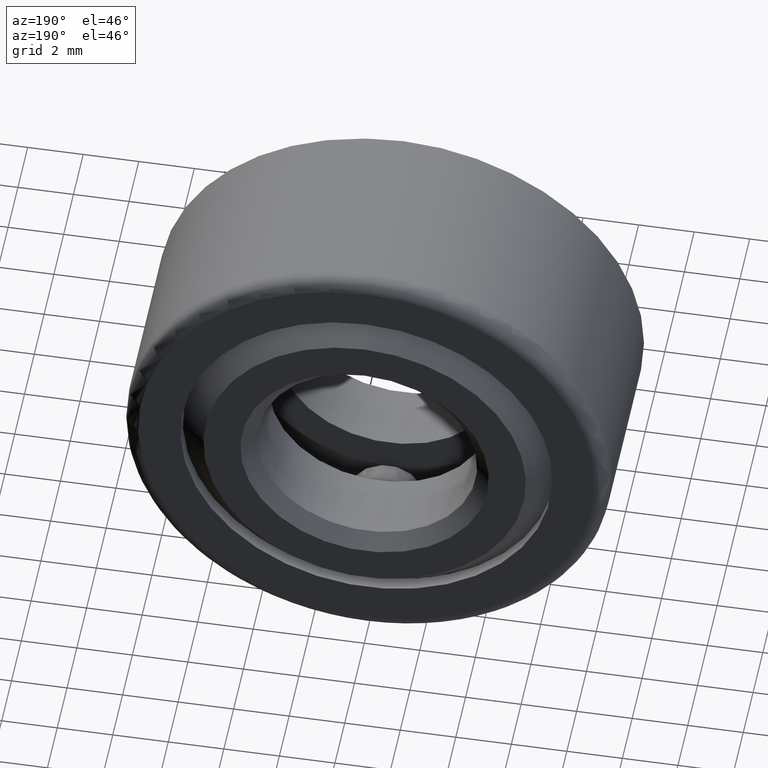
[diagram: clean part render]
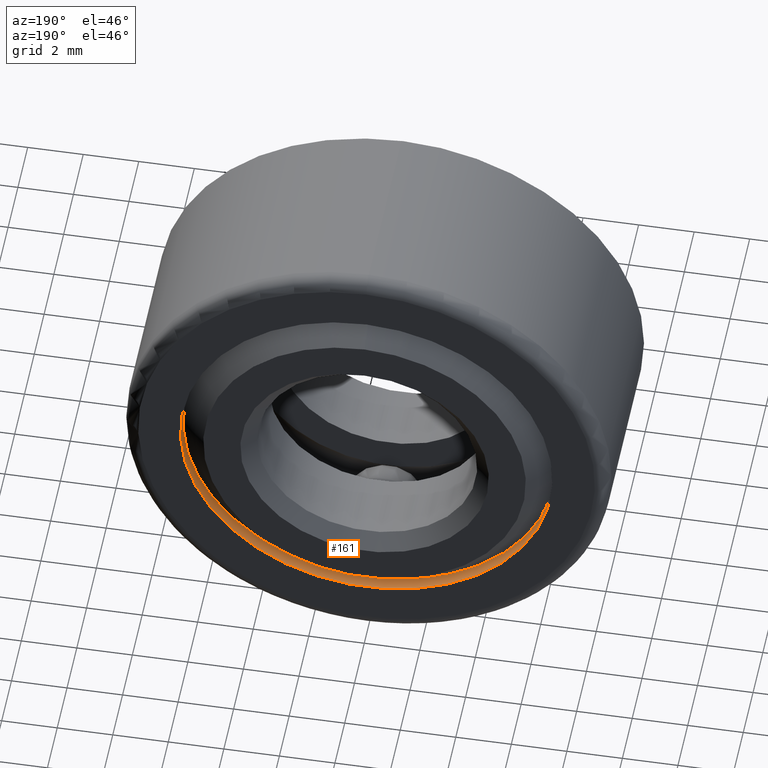
[diagram: same view with one face highlighted and labeled with its STEP entity id]
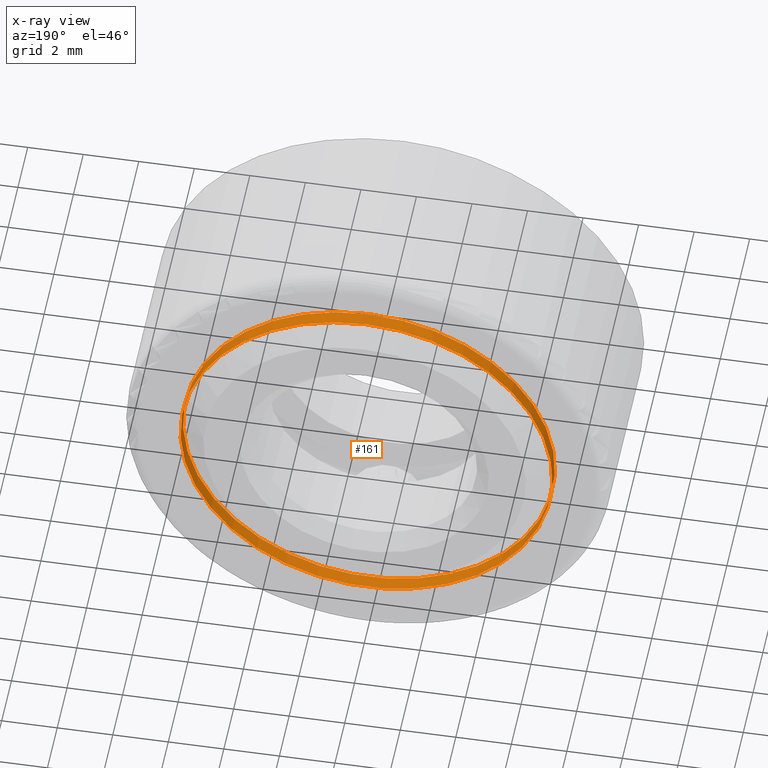
[diagram: x-ray of the same camera — body ghosted, the highlighted face saturated]
A machine part, auxiliary view. The second image highlights one B-rep face of the part: STEP entity #161.
The next image is the same camera in x-ray: the body ghosted, the highlighted face saturated — about 0% of this face is hidden behind the body in this view.
In plain terms, the highlighted cylindrical surface (bore or boss wall) has radius 6.6992 mm, axis along (-0, 1, -0).
Its self-contained STEP definition (entity closure, byte-faithful):
#2 = CARTESIAN_POINT ( 'NONE',  ( 0.0000000000000000000, 0.2974999999999999900, 0.0000000000000000000 ) ) ;
#58 = ORIENTED_EDGE ( 'NONE', *, *, #103, .T. ) ;
#94 = DIRECTION ( 'NONE',  ( 0.0000000000000000000, 0.0000000000000000000, 1.000000000000000000 ) ) ;
#96 = ORIENTED_EDGE ( 'NONE', *, *, #464, .F. ) ;
#103 = EDGE_CURVE ( 'NONE', #442, #442, #525, .T. ) ;
#113 = CARTESIAN_POINT ( 'NONE',  ( 0.0000000000000000000, 0.2974999999999999900, 0.2637499999999999300 ) ) ;
#140 = AXIS2_PLACEMENT_3D ( 'NONE', #156, #536, #197 ) ;
#156 = CARTESIAN_POINT ( 'NONE',  ( 0.0000000000000000000, 0.2775000000000000200, 0.0000000000000000000 ) ) ;
#161 = ADVANCED_FACE ( 'NONE', ( #389, #400 ), #189, .F. ) ;
#169 = CIRCLE ( 'NONE', #140, 0.2637499999999999300 ) ;
#189 = CYLINDRICAL_SURFACE ( 'NONE', #388, 0.2637499999999999300 ) ;
#197 = DIRECTION ( 'NONE',  ( 0.0000000000000000000, 0.0000000000000000000, 1.000000000000000000 ) ) ;
#308 = AXIS2_PLACEMENT_3D ( 'NONE', #2, #417, #420 ) ;
#358 = EDGE_LOOP ( 'NONE', ( #58 ) ) ;
#372 = DIRECTION ( 'NONE',  ( -0.0000000000000000000, 1.000000000000000000, -0.0000000000000000000 ) ) ;
#378 = VERTEX_POINT ( 'NONE', #537 ) ;
#388 = AXIS2_PLACEMENT_3D ( 'NONE', #428, #372, #94 ) ;
#389 = FACE_OUTER_BOUND ( 'NONE', #446, .T. ) ;
#400 = FACE_OUTER_BOUND ( 'NONE', #358, .T. ) ;
#417 = DIRECTION ( 'NONE',  ( -0.0000000000000000000, 1.000000000000000000, -0.0000000000000000000 ) ) ;
#420 = DIRECTION ( 'NONE',  ( 0.0000000000000000000, 0.0000000000000000000, 1.000000000000000000 ) ) ;
#428 = CARTESIAN_POINT ( 'NONE',  ( 0.0000000000000000000, 0.0000000000000000000, 0.0000000000000000000 ) ) ;
#442 = VERTEX_POINT ( 'NONE', #113 ) ;
#446 = EDGE_LOOP ( 'NONE', ( #96 ) ) ;
#464 = EDGE_CURVE ( 'NONE', #378, #378, #169, .T. ) ;
#525 = CIRCLE ( 'NONE', #308, 0.2637499999999999300 ) ;
#536 = DIRECTION ( 'NONE',  ( -0.0000000000000000000, 1.000000000000000000, -0.0000000000000000000 ) ) ;
#537 = CARTESIAN_POINT ( 'NONE',  ( 0.0000000000000000000, 0.2775000000000000200, 0.2637499999999999300 ) ) ;